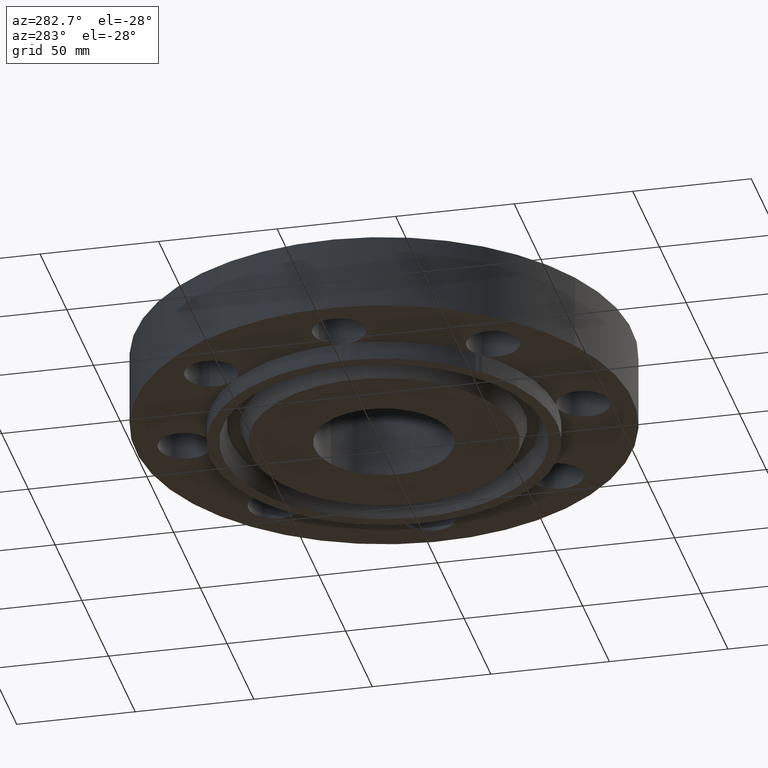
[diagram: clean part render]
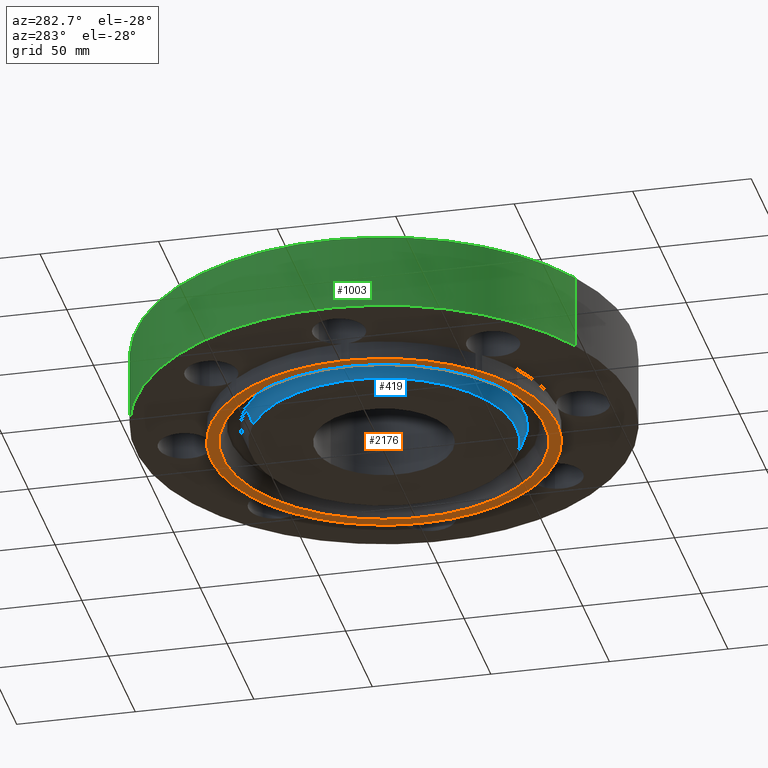
[diagram: same view with three faces highlighted in distinct colors, each labeled with its STEP entity id]
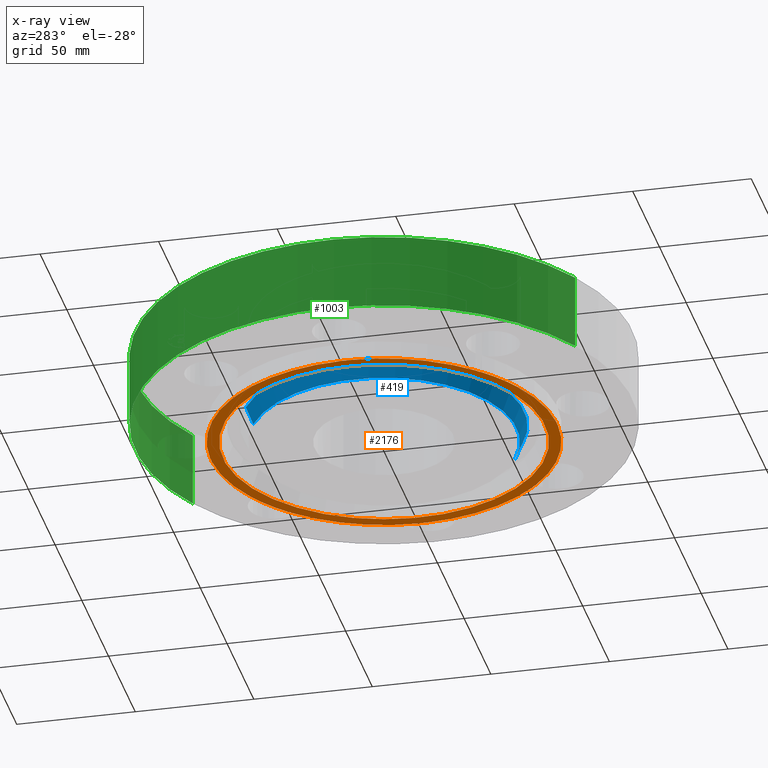
[diagram: x-ray of the same camera — body ghosted, the three highlighted faces saturated]
A machine part, auxiliary view with three faces highlighted in distinct colors.
The next image is the same camera in x-ray (body ghosted, the three faces saturated) — at least one of them is partly hidden behind the body in this view.
Their STEP definitions:

[orange] entity #2176 — the highlighted planar face has unit normal (0, 0, -1).
#271=AXIS2_PLACEMENT_3D('Plane Axis2P3D',#268,#269,#270) ;
#1070=AXIS2_PLACEMENT_3D('Circle Axis2P3D',#1068,#1069,$) ;
#1139=AXIS2_PLACEMENT_3D('Circle Axis2P3D',#1137,#1138,$) ;
#1245=AXIS2_PLACEMENT_3D('Circle Axis2P3D',#1243,#1244,$) ;
#1345=AXIS2_PLACEMENT_3D('Circle Axis2P3D',#1343,#1344,$) ;
#1451=AXIS2_PLACEMENT_3D('Circle Axis2P3D',#1449,#1450,$) ;
#1551=AXIS2_PLACEMENT_3D('Circle Axis2P3D',#1549,#1550,$) ;
#1657=AXIS2_PLACEMENT_3D('Circle Axis2P3D',#1655,#1656,$) ;
#1757=AXIS2_PLACEMENT_3D('Circle Axis2P3D',#1755,#1756,$) ;
#1917=AXIS2_PLACEMENT_3D('Circle Axis2P3D',#1915,#1916,$) ;
#1955=AXIS2_PLACEMENT_3D('Circle Axis2P3D',#1953,#1954,$) ;
#2088=AXIS2_PLACEMENT_3D('Circle Axis2P3D',#2086,#2087,$) ;
#2107=AXIS2_PLACEMENT_3D('Circle Axis2P3D',#2105,#2106,$) ;
#2112=AXIS2_PLACEMENT_3D('Circle Axis2P3D',#2110,#2111,$) ;
#2117=AXIS2_PLACEMENT_3D('Circle Axis2P3D',#2115,#2116,$) ;
#2122=AXIS2_PLACEMENT_3D('Circle Axis2P3D',#2120,#2121,$) ;
#2129=AXIS2_PLACEMENT_3D('Circle Axis2P3D',#2127,#2128,$) ;
#2134=AXIS2_PLACEMENT_3D('Circle Axis2P3D',#2132,#2133,$) ;
#2139=AXIS2_PLACEMENT_3D('Circle Axis2P3D',#2137,#2138,$) ;
#2144=AXIS2_PLACEMENT_3D('Circle Axis2P3D',#2142,#2143,$) ;
#2149=AXIS2_PLACEMENT_3D('Circle Axis2P3D',#2147,#2148,$) ;
#268=CARTESIAN_POINT('Axis2P3D Location',(0.,1.15,-0.313000000001)) ;
#1065=CARTESIAN_POINT('Vertex',(0.0616409037057,2.87433912387,-0.313000000001)) ;
#1068=CARTESIAN_POINT('Axis2P3D Location',(0.,3.31000000001,-0.312999999968)) ;
#1072=CARTESIAN_POINT('Vertex',(-0.0616409037057,2.87433912387,-0.313000000001)) ;
#1134=CARTESIAN_POINT('Vertex',(2.07605138692,1.98887798492,-0.313000000001)) ;
#1137=CARTESIAN_POINT('Axis2P3D Location',(2.34052344574,2.34052344574,-0.312999999968)) ;
#1141=CARTESIAN_POINT('Vertex',(1.98887798495,2.07605138689,-0.313000000001)) ;
#1240=CARTESIAN_POINT('Vertex',(2.87433912391,-0.0616409036676,-0.313000000001)) ;
#1243=CARTESIAN_POINT('Axis2P3D Location',(3.31000000001,2.0267904526E-016,-0.312999999968)) ;
#1247=CARTESIAN_POINT('Vertex',(2.87433912391,0.0616409036705,-0.313000000001)) ;
#1340=CARTESIAN_POINT('Vertex',(1.98887798495,-2.07605138689,-0.313000000001)) ;
#1343=CARTESIAN_POINT('Axis2P3D Location',(2.34052344574,-2.34052344574,-0.312999999968)) ;
#1347=CARTESIAN_POINT('Vertex',(2.07605138692,-1.98887798491,-0.313000000001)) ;
#1446=CARTESIAN_POINT('Vertex',(-0.0616409037057,-2.87433912387,-0.313000000001)) ;
#1449=CARTESIAN_POINT('Axis2P3D Location',(4.05358090519E-016,-3.31000000001,-0.312999999968)) ;
#1453=CARTESIAN_POINT('Vertex',(0.0616409037057,-2.87433912387,-0.313000000001)) ;
#1546=CARTESIAN_POINT('Vertex',(-2.07605138692,-1.98887798491,-0.313000000001)) ;
#1549=CARTESIAN_POINT('Axis2P3D Location',(-2.34052344574,-2.34052344574,-0.312999999968)) ;
#1553=CARTESIAN_POINT('Vertex',(-1.98887798495,-2.07605138689,-0.313000000001)) ;
#1652=CARTESIAN_POINT('Vertex',(-2.87433912391,0.0616409036705,-0.313000000001)) ;
#1655=CARTESIAN_POINT('Axis2P3D Location',(-3.31000000001,-6.08037135779E-016,-0.312999999968)) ;
#1659=CARTESIAN_POINT('Vertex',(-2.87433912391,-0.0616409036676,-0.313000000001)) ;
#1752=CARTESIAN_POINT('Vertex',(-1.98887798495,2.07605138689,-0.313000000001)) ;
#1755=CARTESIAN_POINT('Axis2P3D Location',(-2.34052344574,2.34052344574,-0.312999999968)) ;
#1759=CARTESIAN_POINT('Vertex',(-2.07605138692,1.98887798492,-0.313000000001)) ;
#1915=CARTESIAN_POINT('Axis2P3D Location',(0.,0.,-0.313)) ;
#1919=CARTESIAN_POINT('Vertex',(1.28102503915,-2.34490060537,-0.313000000001)) ;
#1921=CARTESIAN_POINT('Vertex',(-1.28102503915,2.34490060537,-0.313000000001)) ;
#1953=CARTESIAN_POINT('Axis2P3D Location',(0.,0.,-0.313)) ;
#2083=CARTESIAN_POINT('Vertex',(1.37834842346,2.52304986541,-0.313000000001)) ;
#2086=CARTESIAN_POINT('Axis2P3D Location',(0.,0.,-0.312999999965)) ;
#2105=CARTESIAN_POINT('Axis2P3D Location',(2.69938821951E-010,5.84474550997E-011,-0.313000000001)) ;
#2110=CARTESIAN_POINT('Axis2P3D Location',(2.69936863763E-010,-5.55135290318E-011,-0.313000000001)) ;
#2115=CARTESIAN_POINT('Axis2P3D Location',(-6.398773025E-011,1.48757996297E-010,-0.313000000001)) ;
#2120=CARTESIAN_POINT('Axis2P3D Location',(-2.89064030804E-010,-1.4140250825E-009,-0.313000000001)) ;
#2124=CARTESIAN_POINT('Vertex',(-1.37834842346,-2.52304986541,-0.313000000001)) ;
#2127=CARTESIAN_POINT('Axis2P3D Location',(-5.16711321149E-009,-6.80790744863E-009,-0.313000000001)) ;
#2132=CARTESIAN_POINT('Axis2P3D Location',(-2.69938821951E-010,-5.55140885142E-011,-0.313000000001)) ;
#2137=CARTESIAN_POINT('Axis2P3D Location',(-2.69936863763E-010,5.84468956173E-011,-0.313000000001)) ;
#2142=CARTESIAN_POINT('Axis2P3D Location',(6.398773025E-011,-1.45824629712E-010,-0.313000000001)) ;
#2147=CARTESIAN_POINT('Axis2P3D Location',(1.14782136551E-009,1.32112078058E-009,-0.313000000001)) ;
#269=DIRECTION('Axis2P3D Direction',(0.,0.,-0.0393700787402)) ;
#270=DIRECTION('Axis2P3D XDirection',(0.0393700787402,0.,0.)) ;
#1069=DIRECTION('Axis2P3D Direction',(0.,-0.,-0.0393700787402)) ;
#1138=DIRECTION('Axis2P3D Direction',(0.,-0.,-0.0393700787402)) ;
#1244=DIRECTION('Axis2P3D Direction',(0.,-0.,-0.0393700787402)) ;
#1344=DIRECTION('Axis2P3D Direction',(-0.,0.,-0.0393700787402)) ;
#1450=DIRECTION('Axis2P3D Direction',(0.,0.,-0.0393700787402)) ;
#1550=DIRECTION('Axis2P3D Direction',(0.,0.,-0.0393700787402)) ;
#1656=DIRECTION('Axis2P3D Direction',(0.,0.,-0.0393700787402)) ;
#1756=DIRECTION('Axis2P3D Direction',(0.,0.,-0.0393700787402)) ;
#1916=DIRECTION('Axis2P3D Direction',(0.,-0.,-0.0393700787402)) ;
#1954=DIRECTION('Axis2P3D Direction',(0.,-0.,-0.0393700787402)) ;
#2087=DIRECTION('Axis2P3D Direction',(0.,0.,-0.0393700787402)) ;
#2106=DIRECTION('Axis2P3D Direction',(0.,0.,-0.0393700787402)) ;
#2111=DIRECTION('Axis2P3D Direction',(0.,0.,-0.0393700787402)) ;
#2116=DIRECTION('Axis2P3D Direction',(0.,0.,-0.0393700787402)) ;
#2121=DIRECTION('Axis2P3D Direction',(0.,0.,-0.0393700787402)) ;
#2128=DIRECTION('Axis2P3D Direction',(0.,0.,-0.0393700787402)) ;
#2133=DIRECTION('Axis2P3D Direction',(0.,0.,-0.0393700787402)) ;
#2138=DIRECTION('Axis2P3D Direction',(0.,0.,-0.0393700787402)) ;
#2143=DIRECTION('Axis2P3D Direction',(0.,0.,-0.0393700787402)) ;
#2148=DIRECTION('Axis2P3D Direction',(0.,0.,-0.0393700787402)) ;
#2153=ORIENTED_EDGE('',*,*,#2109,.T.) ;
#2154=ORIENTED_EDGE('',*,*,#1249,.F.) ;
#2155=ORIENTED_EDGE('',*,*,#2114,.T.) ;
#2156=ORIENTED_EDGE('',*,*,#1349,.F.) ;
#2157=ORIENTED_EDGE('',*,*,#2119,.T.) ;
#2158=ORIENTED_EDGE('',*,*,#1455,.F.) ;
#2159=ORIENTED_EDGE('',*,*,#2126,.T.) ;
#2160=ORIENTED_EDGE('',*,*,#2131,.T.) ;
#2161=ORIENTED_EDGE('',*,*,#1555,.F.) ;
#2162=ORIENTED_EDGE('',*,*,#2136,.T.) ;
#2163=ORIENTED_EDGE('',*,*,#1661,.F.) ;
#2164=ORIENTED_EDGE('',*,*,#2141,.T.) ;
#2165=ORIENTED_EDGE('',*,*,#1761,.F.) ;
#2166=ORIENTED_EDGE('',*,*,#2146,.T.) ;
#2167=ORIENTED_EDGE('',*,*,#1074,.F.) ;
#2168=ORIENTED_EDGE('',*,*,#2090,.T.) ;
#2169=ORIENTED_EDGE('',*,*,#2151,.T.) ;
#2170=ORIENTED_EDGE('',*,*,#1143,.F.) ;
#2173=ORIENTED_EDGE('',*,*,#1923,.F.) ;
#2174=ORIENTED_EDGE('',*,*,#1957,.F.) ;
#2175=FACE_BOUND('',#2172,.T.) ;
#2176=ADVANCED_FACE('PartBody',(#2171,#2175),#272,.T.) ;
#1071=CIRCLE('generated circle',#1070,0.440000000002) ;
#1140=CIRCLE('generated circle',#1139,0.440000000002) ;
#1246=CIRCLE('generated circle',#1245,0.440000000002) ;
#1346=CIRCLE('generated circle',#1345,0.440000000002) ;
#1452=CIRCLE('generated circle',#1451,0.440000000002) ;
#1552=CIRCLE('generated circle',#1551,0.440000000002) ;
#1658=CIRCLE('generated circle',#1657,0.440000000002) ;
#1758=CIRCLE('generated circle',#1757,0.440000000002) ;
#1918=CIRCLE('generated circle',#1917,2.67200000001) ;
#1956=CIRCLE('generated circle',#1955,2.67200000001) ;
#2089=CIRCLE('generated circle',#2088,2.87500000001) ;
#2108=CIRCLE('generated circle',#2107,2.87499999977) ;
#2113=CIRCLE('generated circle',#2112,2.87499999977) ;
#2118=CIRCLE('generated circle',#2117,2.87500000015) ;
#2123=CIRCLE('generated circle',#2122,2.87499999858) ;
#2130=CIRCLE('generated circle',#2129,2.87499999151) ;
#2135=CIRCLE('generated circle',#2134,2.87499999977) ;
#2140=CIRCLE('generated circle',#2139,2.87499999977) ;
#2145=CIRCLE('generated circle',#2144,2.87500000015) ;
#2150=CIRCLE('generated circle',#2149,2.87499999826) ;
#1074=EDGE_CURVE('',#1066,#1073,#1071,.T.) ;
#1143=EDGE_CURVE('',#1135,#1142,#1140,.T.) ;
#1249=EDGE_CURVE('',#1241,#1248,#1246,.T.) ;
#1349=EDGE_CURVE('',#1341,#1348,#1346,.T.) ;
#1455=EDGE_CURVE('',#1447,#1454,#1452,.T.) ;
#1555=EDGE_CURVE('',#1547,#1554,#1552,.T.) ;
#1661=EDGE_CURVE('',#1653,#1660,#1658,.T.) ;
#1761=EDGE_CURVE('',#1753,#1760,#1758,.T.) ;
#1923=EDGE_CURVE('',#1920,#1922,#1918,.T.) ;
#1957=EDGE_CURVE('',#1922,#1920,#1956,.T.) ;
#2090=EDGE_CURVE('',#1066,#2084,#2089,.T.) ;
#2109=EDGE_CURVE('',#1135,#1248,#2108,.T.) ;
#2114=EDGE_CURVE('',#1241,#1348,#2113,.T.) ;
#2119=EDGE_CURVE('',#1341,#1454,#2118,.T.) ;
#2126=EDGE_CURVE('',#1447,#2125,#2123,.T.) ;
#2131=EDGE_CURVE('',#2125,#1554,#2130,.T.) ;
#2136=EDGE_CURVE('',#1547,#1660,#2135,.T.) ;
#2141=EDGE_CURVE('',#1653,#1760,#2140,.T.) ;
#2146=EDGE_CURVE('',#1753,#1073,#2145,.T.) ;
#2151=EDGE_CURVE('',#2084,#1142,#2150,.T.) ;
#2152=EDGE_LOOP('',(#2153,#2154,#2155,#2156,#2157,#2158,#2159,#2160,#2161,#2162,#2163,#2164,#2165,#2166,#2167,#2168,#2169,#2170)) ;
#2172=EDGE_LOOP('',(#2173,#2174)) ;
#2171=FACE_OUTER_BOUND('',#2152,.T.) ;
#272=PLANE('',#271) ;
#1066=VERTEX_POINT('',#1065) ;
#1073=VERTEX_POINT('',#1072) ;
#1135=VERTEX_POINT('',#1134) ;
#1142=VERTEX_POINT('',#1141) ;
#1241=VERTEX_POINT('',#1240) ;
#1248=VERTEX_POINT('',#1247) ;
#1341=VERTEX_POINT('',#1340) ;
#1348=VERTEX_POINT('',#1347) ;
#1447=VERTEX_POINT('',#1446) ;
#1454=VERTEX_POINT('',#1453) ;
#1547=VERTEX_POINT('',#1546) ;
#1554=VERTEX_POINT('',#1553) ;
#1653=VERTEX_POINT('',#1652) ;
#1660=VERTEX_POINT('',#1659) ;
#1753=VERTEX_POINT('',#1752) ;
#1760=VERTEX_POINT('',#1759) ;
#1920=VERTEX_POINT('',#1919) ;
#1922=VERTEX_POINT('',#1921) ;
#2084=VERTEX_POINT('',#2083) ;
#2125=VERTEX_POINT('',#2124) ;

[blue] entity #419 — the highlighted conical surface has half-angle 23 deg.
#284=AXIS2_PLACEMENT_3D('Circle Axis2P3D',#282,#283,$) ;
#406=AXIS2_PLACEMENT_3D('Cone Axis2P3D',#403,#404,#405) ;
#410=AXIS2_PLACEMENT_3D('Circle Axis2P3D',#408,#409,$) ;
#277=CARTESIAN_POINT('Vertex',(-1.05617446158,1.93331438385,-0.313000000001)) ;
#279=CARTESIAN_POINT('Vertex',(1.05617446158,-1.93331438384,-0.313000000001)) ;
#282=CARTESIAN_POINT('Axis2P3D Location',(-1.28117988659E-011,-5.53272213695E-012,-0.313000000001)) ;
#370=CARTESIAN_POINT('Line Origine',(-1.08610102335,1.98809458778,-0.16594366751)) ;
#374=CARTESIAN_POINT('Vertex',(-1.11602758515,2.0428747917,-0.0188873350178)) ;
#381=CARTESIAN_POINT('Vertex',(1.11602758515,-2.0428747917,-0.0188873350193)) ;
#384=CARTESIAN_POINT('Line Origine',(1.08610102335,-1.98809458778,-0.16594366751)) ;
#403=CARTESIAN_POINT('Axis2P3D Location',(0.,0.,-0.373000000001)) ;
#408=CARTESIAN_POINT('Axis2P3D Location',(0.,0.,-0.0188873350193)) ;
#283=DIRECTION('Axis2P3D Direction',(0.,0.,-0.0393700787402)) ;
#371=DIRECTION('Vector Direction',(-0.00737505833566,0.0134999537303,0.0362403485611)) ;
#385=DIRECTION('Vector Direction',(0.00737505833566,-0.0134999537303,0.0362403485611)) ;
#404=DIRECTION('Axis2P3D Direction',(0.,0.,0.0393700787402)) ;
#405=DIRECTION('Axis2P3D XDirection',(-0.0188750212049,0.0345504945626,0.)) ;
#409=DIRECTION('Axis2P3D Direction',(0.,0.,0.0393700787402)) ;
#372=VECTOR('Line Direction',#371,0.0393700787402) ;
#386=VECTOR('Line Direction',#385,0.0393700787402) ;
#414=ORIENTED_EDGE('',*,*,#388,.F.) ;
#415=ORIENTED_EDGE('',*,*,#412,.F.) ;
#416=ORIENTED_EDGE('',*,*,#376,.T.) ;
#417=ORIENTED_EDGE('',*,*,#286,.F.) ;
#419=ADVANCED_FACE('PartBody',(#418),#407,.T.) ;
#285=CIRCLE('generated circle',#284,2.20300000001) ;
#411=CIRCLE('generated circle',#410,2.32784341943) ;
#407=CONICAL_SURFACE('Cone',#406,2.17753151104,0.401425727959) ;
#286=EDGE_CURVE('',#280,#278,#285,.T.) ;
#376=EDGE_CURVE('',#375,#278,#373,.F.) ;
#388=EDGE_CURVE('',#382,#280,#387,.F.) ;
#412=EDGE_CURVE('',#375,#382,#411,.T.) ;
#413=EDGE_LOOP('',(#414,#415,#416,#417)) ;
#418=FACE_OUTER_BOUND('',#413,.T.) ;
#373=LINE('Line',#370,#372) ;
#387=LINE('Line',#384,#386) ;
#278=VERTEX_POINT('',#277) ;
#280=VERTEX_POINT('',#279) ;
#375=VERTEX_POINT('',#374) ;
#382=VERTEX_POINT('',#381) ;

[green] entity #1003 — the highlighted cylindrical surface (partial cylindrical patch) has radius 104.775 mm, axis along (0, 0, -1).
#706=AXIS2_PLACEMENT_3D('Circle Axis2P3D',#704,#705,$) ;
#990=AXIS2_PLACEMENT_3D('Cylinder Axis2P3D',#987,#988,#989) ;
#994=AXIS2_PLACEMENT_3D('Circle Axis2P3D',#992,#993,$) ;
#699=CARTESIAN_POINT('Vertex',(1.97763034678,3.62002806783,1.25000000001)) ;
#701=CARTESIAN_POINT('Vertex',(-1.97763034675,-3.62002806781,1.24999999999)) ;
#704=CARTESIAN_POINT('Axis2P3D Location',(1.1189649382E-015,5.33466534289E-012,1.25000000001)) ;
#958=CARTESIAN_POINT('Vertex',(1.97763034678,3.62002806782,0.)) ;
#960=CARTESIAN_POINT('Vertex',(-1.97763034678,-3.62002806782,0.)) ;
#963=CARTESIAN_POINT('Line Origine',(1.97763034675,3.62002806781,0.624999999992)) ;
#968=CARTESIAN_POINT('Line Origine',(-1.97763034675,-3.62002806781,0.624999999992)) ;
#987=CARTESIAN_POINT('Axis2P3D Location',(0.,0.,0.748500000003)) ;
#992=CARTESIAN_POINT('Axis2P3D Location',(0.,0.,5.59482469102E-016)) ;
#705=DIRECTION('Axis2P3D Direction',(0.,0.,-0.0393700787402)) ;
#964=DIRECTION('Vector Direction',(0.,0.,-0.0393700787402)) ;
#969=DIRECTION('Vector Direction',(0.,0.,-0.0393700787402)) ;
#988=DIRECTION('Axis2P3D Direction',(0.,0.,-0.0393700787402)) ;
#989=DIRECTION('Axis2P3D XDirection',(-0.0188750212049,-0.0345504945626,0.)) ;
#993=DIRECTION('Axis2P3D Direction',(0.,0.,-0.0393700787402)) ;
#965=VECTOR('Line Direction',#964,0.0393700787402) ;
#970=VECTOR('Line Direction',#969,0.0393700787402) ;
#998=ORIENTED_EDGE('',*,*,#996,.F.) ;
#999=ORIENTED_EDGE('',*,*,#972,.T.) ;
#1000=ORIENTED_EDGE('',*,*,#708,.T.) ;
#1001=ORIENTED_EDGE('',*,*,#967,.F.) ;
#1003=ADVANCED_FACE('PartBody',(#1002),#991,.T.) ;
#707=CIRCLE('generated circle',#706,4.12500000004) ;
#995=CIRCLE('generated circle',#994,4.12500000002) ;
#991=CYLINDRICAL_SURFACE('generated cylinder',#990,4.12500000002) ;
#708=EDGE_CURVE('',#702,#700,#707,.T.) ;
#967=EDGE_CURVE('',#959,#700,#966,.F.) ;
#972=EDGE_CURVE('',#961,#702,#971,.F.) ;
#996=EDGE_CURVE('',#961,#959,#995,.T.) ;
#997=EDGE_LOOP('',(#998,#999,#1000,#1001)) ;
#1002=FACE_OUTER_BOUND('',#997,.T.) ;
#966=LINE('Line',#963,#965) ;
#971=LINE('Line',#968,#970) ;
#700=VERTEX_POINT('',#699) ;
#702=VERTEX_POINT('',#701) ;
#959=VERTEX_POINT('',#958) ;
#961=VERTEX_POINT('',#960) ;